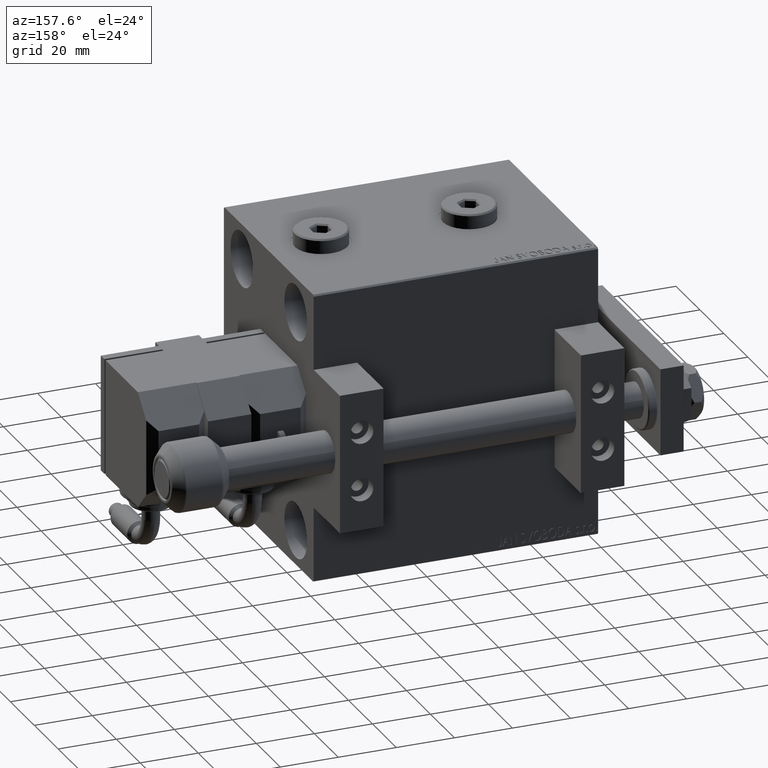
[diagram: clean part render]
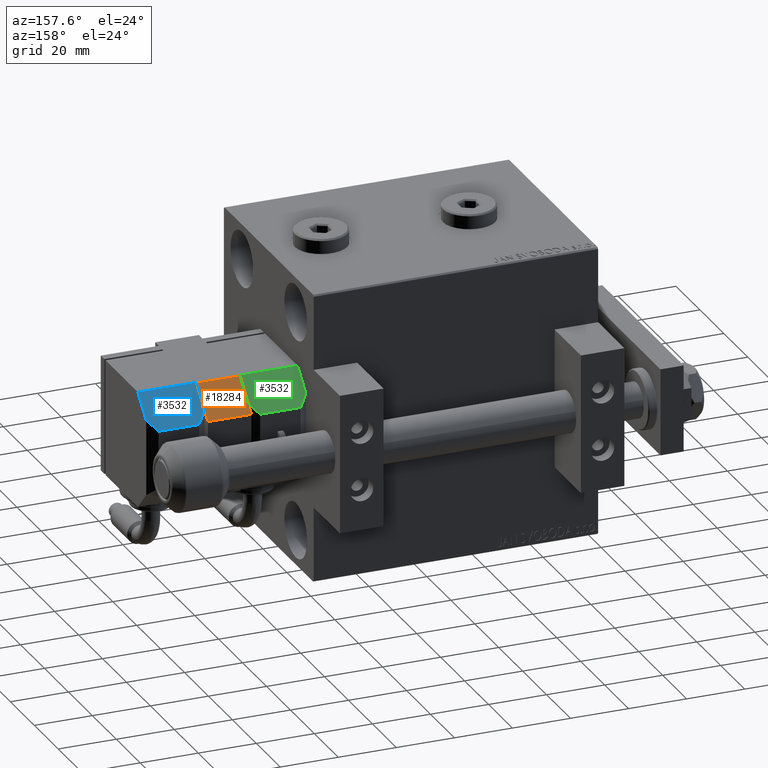
[diagram: same view with three faces highlighted in distinct colors, each labeled with its STEP entity id]
A machine part, auxiliary view with three faces highlighted in distinct colors.
Their STEP definitions:

[orange] entity #18284 — the highlighted planar face has unit normal (0, -0.7071, -0.7071).
#233 = ORIENTED_EDGE ( 'NONE', *, *, #32816, .F. ) ;
#2379 = VECTOR ( 'NONE', #36402, 1000.000000000000000 ) ;
#2611 = VERTEX_POINT ( 'NONE', #28374 ) ;
#3078 = DIRECTION ( 'NONE',  ( 0.7071067811865462405, -0.7071067811865489050, 0.000000000000000000 ) ) ;
#3758 = VERTEX_POINT ( 'NONE', #38452 ) ;
#4746 = EDGE_LOOP ( 'NONE', ( #27652, #48308, #233, #33294 ) ) ;
#5034 = VECTOR ( 'NONE', #35212, 1000.000000000000000 ) ;
#5624 = DIRECTION ( 'NONE',  ( 0.000000000000000000, 0.000000000000000000, 1.000000000000000000 ) ) ;
#10051 = CARTESIAN_POINT ( 'NONE',  ( -16.24999999999996447, 16.25000000000002487, 15.00000000000000000 ) ) ;
#10751 = CARTESIAN_POINT ( 'NONE',  ( -20.00000000000000000, 12.50000000000000533, 15.00000000000000000 ) ) ;
#18284 = ADVANCED_FACE ( 'NONE', ( #39468 ), #51166, .F. ) ;
#21208 = EDGE_CURVE ( 'NONE', #42052, #24130, #41997, .T. ) ;
#22496 = CARTESIAN_POINT ( 'NONE',  ( -20.00000000000000000, 12.50000000000000355, 15.00000000000000000 ) ) ;
#24130 = VERTEX_POINT ( 'NONE', #43384 ) ;
#27652 = ORIENTED_EDGE ( 'NONE', *, *, #36370, .F. ) ;
#27936 = VECTOR ( 'NONE', #46959, 1000.000000000000000 ) ;
#28374 = CARTESIAN_POINT ( 'NONE',  ( -20.00000000000000000, 12.50000000000000533, 0.000000000000000000 ) ) ;
#29814 = EDGE_CURVE ( 'NONE', #3758, #2611, #45825, .T. ) ;
#30509 = LINE ( 'NONE', #10051, #27936 ) ;
#32816 = EDGE_CURVE ( 'NONE', #2611, #42052, #39456, .T. ) ;
#33294 = ORIENTED_EDGE ( 'NONE', *, *, #29814, .F. ) ;
#34688 = CARTESIAN_POINT ( 'NONE',  ( -20.00000000000000000, 12.50000000000000355, 0.000000000000000000 ) ) ;
#35212 = DIRECTION ( 'NONE',  ( 0.7071067811865489050, 0.7071067811865462405, -0.000000000000000000 ) ) ;
#36370 = EDGE_CURVE ( 'NONE', #24130, #3758, #30509, .T. ) ;
#36402 = DIRECTION ( 'NONE',  ( -0.000000000000000000, 0.000000000000000000, -1.000000000000000000 ) ) ;
#38452 = CARTESIAN_POINT ( 'NONE',  ( -20.00000000000000000, 12.50000000000000533, 15.00000000000000000 ) ) ;
#38694 = DIRECTION ( 'NONE',  ( 0.000000000000000000, 0.000000000000000000, -1.000000000000000000 ) ) ;
#39456 = LINE ( 'NONE', #34688, #5034 ) ;
#39468 = FACE_OUTER_BOUND ( 'NONE', #4746, .T. ) ;
#41977 = AXIS2_PLACEMENT_3D ( 'NONE', #22496, #3078, #38694 ) ;
#41997 = LINE ( 'NONE', #49696, #43785 ) ;
#42052 = VERTEX_POINT ( 'NONE', #49245 ) ;
#43384 = CARTESIAN_POINT ( 'NONE',  ( -10.49999999999997158, 22.00000000000000000, 15.00000000000000000 ) ) ;
#43785 = VECTOR ( 'NONE', #5624, 1000.000000000000000 ) ;
#45825 = LINE ( 'NONE', #10751, #2379 ) ;
#46959 = DIRECTION ( 'NONE',  ( -0.7071067811865489050, -0.7071067811865462405, -0.000000000000000000 ) ) ;
#48308 = ORIENTED_EDGE ( 'NONE', *, *, #21208, .F. ) ;
#49245 = CARTESIAN_POINT ( 'NONE',  ( -10.49999999999997158, 22.00000000000000000, 0.000000000000000000 ) ) ;
#49696 = CARTESIAN_POINT ( 'NONE',  ( -10.49999999999997158, 22.00000000000000000, 15.00000000000000000 ) ) ;
#51166 = PLANE ( 'NONE',  #41977 ) ;

[blue] entity #3532 — the highlighted planar face has unit normal (0, -0.7071, -0.7071).
#1844 = VECTOR ( 'NONE', #46904, 1000.000000000000114 ) ;
#2377 = FACE_OUTER_BOUND ( 'NONE', #22808, .T. ) ;
#2638 = DIRECTION ( 'NONE',  ( 0.7071067811865479058, -0.7071067811865470176, 0.000000000000000000 ) ) ;
#3357 = CARTESIAN_POINT ( 'NONE',  ( 8.666666666666658969, 24.83333333333341741, 5.666666666666664298 ) ) ;
#3492 = AXIS2_PLACEMENT_3D ( 'NONE', #39029, #14607, #2638 ) ;
#3532 = ADVANCED_FACE ( 'NONE', ( #2377 ), #50987, .F. ) ;
#4653 = EDGE_CURVE ( 'NONE', #44797, #45563, #47456, .T. ) ;
#8946 = ORIENTED_EDGE ( 'NONE', *, *, #41847, .F. ) ;
#9479 = CARTESIAN_POINT ( 'NONE',  ( 9.999999999999984013, 23.50000000000009592, 10.00000000000000000 ) ) ;
#14308 = CARTESIAN_POINT ( 'NONE',  ( 20.00000000000005684, 13.50000000000003730, -10.00000000000000000 ) ) ;
#14607 = DIRECTION ( 'NONE',  ( -0.7071067811865471286, -0.7071067811865480168, 0.000000000000000000 ) ) ;
#14966 = VERTEX_POINT ( 'NONE', #30580 ) ;
#18266 = ORIENTED_EDGE ( 'NONE', *, *, #49471, .F. ) ;
#18937 = CARTESIAN_POINT ( 'NONE',  ( 9.999999999999984013, 23.50000000000009592, 10.00000000000000000 ) ) ;
#19173 = VECTOR ( 'NONE', #33168, 1000.000000000000000 ) ;
#19243 = ORIENTED_EDGE ( 'NONE', *, *, #21523, .T. ) ;
#20731 = LINE ( 'NONE', #48887, #46695 ) ;
#21523 = EDGE_CURVE ( 'NONE', #44723, #36366, #37674, .T. ) ;
#22808 = EDGE_LOOP ( 'NONE', ( #31550, #44590, #18266, #24018, #8946, #19243 ) ) ;
#24018 = ORIENTED_EDGE ( 'NONE', *, *, #4653, .T. ) ;
#24452 = DIRECTION ( 'NONE',  ( -0.7071067811865479058, 0.7071067811865470176, -0.000000000000000000 ) ) ;
#27802 = DIRECTION ( 'NONE',  ( 0.5773502691896258421, -0.5773502691896250649, 0.5773502691896263972 ) ) ;
#30580 = CARTESIAN_POINT ( 'NONE',  ( 9.999999999999984013, 23.50000000000009592, -7.000000000000004441 ) ) ;
#31550 = ORIENTED_EDGE ( 'NONE', *, *, #39472, .T. ) ;
#31567 = VECTOR ( 'NONE', #27802, 999.9999999999998863 ) ;
#31711 = CARTESIAN_POINT ( 'NONE',  ( 20.00000000000005684, 13.50000000000003730, 10.00000000000000000 ) ) ;
#32345 = CARTESIAN_POINT ( 'NONE',  ( 3.333333333333287296, 30.16666666666678154, -0.3333333333333339255 ) ) ;
#33168 = DIRECTION ( 'NONE',  ( -0.000000000000000000, -0.000000000000000000, -1.000000000000000000 ) ) ;
#36366 = VERTEX_POINT ( 'NONE', #14308 ) ;
#37404 = CARTESIAN_POINT ( 'NONE',  ( 20.00000000000005684, 13.50000000000003730, 10.00000000000000000 ) ) ;
#37674 = LINE ( 'NONE', #37404, #19173 ) ;
#38154 = LINE ( 'NONE', #9479, #1844 ) ;
#38614 = LINE ( 'NONE', #18937, #40991 ) ;
#39029 = CARTESIAN_POINT ( 'NONE',  ( 9.999999999999984013, 23.50000000000009592, 10.00000000000000000 ) ) ;
#39472 = EDGE_CURVE ( 'NONE', #36366, #48249, #20731, .T. ) ;
#40991 = VECTOR ( 'NONE', #50819, 1000.000000000000000 ) ;
#41356 = LINE ( 'NONE', #32345, #45315 ) ;
#41847 = EDGE_CURVE ( 'NONE', #44723, #45563, #38154, .T. ) ;
#44305 = CARTESIAN_POINT ( 'NONE',  ( 12.99999999999999112, 20.50000000000009592, 10.00000000000000000 ) ) ;
#44590 = ORIENTED_EDGE ( 'NONE', *, *, #51747, .T. ) ;
#44723 = VERTEX_POINT ( 'NONE', #31711 ) ;
#44797 = VERTEX_POINT ( 'NONE', #49201 ) ;
#45315 = VECTOR ( 'NONE', #52525, 1000.000000000000227 ) ;
#45563 = VERTEX_POINT ( 'NONE', #44305 ) ;
#46695 = VECTOR ( 'NONE', #24452, 1000.000000000000114 ) ;
#46904 = DIRECTION ( 'NONE',  ( -0.7071067811865479058, 0.7071067811865470176, -0.000000000000000000 ) ) ;
#47456 = LINE ( 'NONE', #3357, #31567 ) ;
#47931 = CARTESIAN_POINT ( 'NONE',  ( 12.99999999999999112, 20.50000000000009592, -10.00000000000000000 ) ) ;
#48249 = VERTEX_POINT ( 'NONE', #47931 ) ;
#48887 = CARTESIAN_POINT ( 'NONE',  ( 9.999999999999984013, 23.50000000000009592, -10.00000000000000000 ) ) ;
#49201 = CARTESIAN_POINT ( 'NONE',  ( 9.999999999999984013, 23.50000000000009592, 6.999999999999990230 ) ) ;
#49471 = EDGE_CURVE ( 'NONE', #44797, #14966, #38614, .T. ) ;
#50819 = DIRECTION ( 'NONE',  ( -0.000000000000000000, -0.000000000000000000, -1.000000000000000000 ) ) ;
#50987 = PLANE ( 'NONE',  #3492 ) ;
#51747 = EDGE_CURVE ( 'NONE', #48249, #14966, #41356, .T. ) ;
#52525 = DIRECTION ( 'NONE',  ( -0.5773502691896266192, 0.5773502691896259531, 0.5773502691896246208 ) ) ;

[green] entity #3532 — the highlighted planar face has unit normal (-0, -0.7071, -0.7071).
#1844 = VECTOR ( 'NONE', #46904, 1000.000000000000114 ) ;
#2377 = FACE_OUTER_BOUND ( 'NONE', #22808, .T. ) ;
#2638 = DIRECTION ( 'NONE',  ( 0.7071067811865479058, -0.7071067811865470176, 0.000000000000000000 ) ) ;
#3357 = CARTESIAN_POINT ( 'NONE',  ( 8.666666666666658969, 24.83333333333341741, 5.666666666666664298 ) ) ;
#3492 = AXIS2_PLACEMENT_3D ( 'NONE', #39029, #14607, #2638 ) ;
#3532 = ADVANCED_FACE ( 'NONE', ( #2377 ), #50987, .F. ) ;
#4653 = EDGE_CURVE ( 'NONE', #44797, #45563, #47456, .T. ) ;
#8946 = ORIENTED_EDGE ( 'NONE', *, *, #41847, .F. ) ;
#9479 = CARTESIAN_POINT ( 'NONE',  ( 9.999999999999984013, 23.50000000000009592, 10.00000000000000000 ) ) ;
#14308 = CARTESIAN_POINT ( 'NONE',  ( 20.00000000000005684, 13.50000000000003730, -10.00000000000000000 ) ) ;
#14607 = DIRECTION ( 'NONE',  ( -0.7071067811865471286, -0.7071067811865480168, 0.000000000000000000 ) ) ;
#14966 = VERTEX_POINT ( 'NONE', #30580 ) ;
#18266 = ORIENTED_EDGE ( 'NONE', *, *, #49471, .F. ) ;
#18937 = CARTESIAN_POINT ( 'NONE',  ( 9.999999999999984013, 23.50000000000009592, 10.00000000000000000 ) ) ;
#19173 = VECTOR ( 'NONE', #33168, 1000.000000000000000 ) ;
#19243 = ORIENTED_EDGE ( 'NONE', *, *, #21523, .T. ) ;
#20731 = LINE ( 'NONE', #48887, #46695 ) ;
#21523 = EDGE_CURVE ( 'NONE', #44723, #36366, #37674, .T. ) ;
#22808 = EDGE_LOOP ( 'NONE', ( #31550, #44590, #18266, #24018, #8946, #19243 ) ) ;
#24018 = ORIENTED_EDGE ( 'NONE', *, *, #4653, .T. ) ;
#24452 = DIRECTION ( 'NONE',  ( -0.7071067811865479058, 0.7071067811865470176, -0.000000000000000000 ) ) ;
#27802 = DIRECTION ( 'NONE',  ( 0.5773502691896258421, -0.5773502691896250649, 0.5773502691896263972 ) ) ;
#30580 = CARTESIAN_POINT ( 'NONE',  ( 9.999999999999984013, 23.50000000000009592, -7.000000000000004441 ) ) ;
#31550 = ORIENTED_EDGE ( 'NONE', *, *, #39472, .T. ) ;
#31567 = VECTOR ( 'NONE', #27802, 999.9999999999998863 ) ;
#31711 = CARTESIAN_POINT ( 'NONE',  ( 20.00000000000005684, 13.50000000000003730, 10.00000000000000000 ) ) ;
#32345 = CARTESIAN_POINT ( 'NONE',  ( 3.333333333333287296, 30.16666666666678154, -0.3333333333333339255 ) ) ;
#33168 = DIRECTION ( 'NONE',  ( -0.000000000000000000, -0.000000000000000000, -1.000000000000000000 ) ) ;
#36366 = VERTEX_POINT ( 'NONE', #14308 ) ;
#37404 = CARTESIAN_POINT ( 'NONE',  ( 20.00000000000005684, 13.50000000000003730, 10.00000000000000000 ) ) ;
#37674 = LINE ( 'NONE', #37404, #19173 ) ;
#38154 = LINE ( 'NONE', #9479, #1844 ) ;
#38614 = LINE ( 'NONE', #18937, #40991 ) ;
#39029 = CARTESIAN_POINT ( 'NONE',  ( 9.999999999999984013, 23.50000000000009592, 10.00000000000000000 ) ) ;
#39472 = EDGE_CURVE ( 'NONE', #36366, #48249, #20731, .T. ) ;
#40991 = VECTOR ( 'NONE', #50819, 1000.000000000000000 ) ;
#41356 = LINE ( 'NONE', #32345, #45315 ) ;
#41847 = EDGE_CURVE ( 'NONE', #44723, #45563, #38154, .T. ) ;
#44305 = CARTESIAN_POINT ( 'NONE',  ( 12.99999999999999112, 20.50000000000009592, 10.00000000000000000 ) ) ;
#44590 = ORIENTED_EDGE ( 'NONE', *, *, #51747, .T. ) ;
#44723 = VERTEX_POINT ( 'NONE', #31711 ) ;
#44797 = VERTEX_POINT ( 'NONE', #49201 ) ;
#45315 = VECTOR ( 'NONE', #52525, 1000.000000000000227 ) ;
#45563 = VERTEX_POINT ( 'NONE', #44305 ) ;
#46695 = VECTOR ( 'NONE', #24452, 1000.000000000000114 ) ;
#46904 = DIRECTION ( 'NONE',  ( -0.7071067811865479058, 0.7071067811865470176, -0.000000000000000000 ) ) ;
#47456 = LINE ( 'NONE', #3357, #31567 ) ;
#47931 = CARTESIAN_POINT ( 'NONE',  ( 12.99999999999999112, 20.50000000000009592, -10.00000000000000000 ) ) ;
#48249 = VERTEX_POINT ( 'NONE', #47931 ) ;
#48887 = CARTESIAN_POINT ( 'NONE',  ( 9.999999999999984013, 23.50000000000009592, -10.00000000000000000 ) ) ;
#49201 = CARTESIAN_POINT ( 'NONE',  ( 9.999999999999984013, 23.50000000000009592, 6.999999999999990230 ) ) ;
#49471 = EDGE_CURVE ( 'NONE', #44797, #14966, #38614, .T. ) ;
#50819 = DIRECTION ( 'NONE',  ( -0.000000000000000000, -0.000000000000000000, -1.000000000000000000 ) ) ;
#50987 = PLANE ( 'NONE',  #3492 ) ;
#51747 = EDGE_CURVE ( 'NONE', #48249, #14966, #41356, .T. ) ;
#52525 = DIRECTION ( 'NONE',  ( -0.5773502691896266192, 0.5773502691896259531, 0.5773502691896246208 ) ) ;